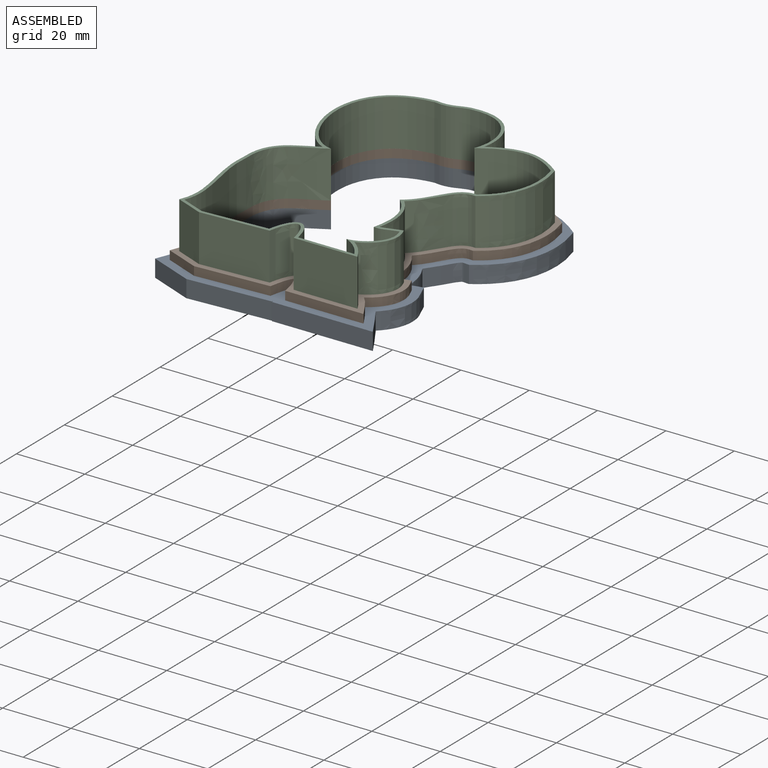
[diagram: assembled view]
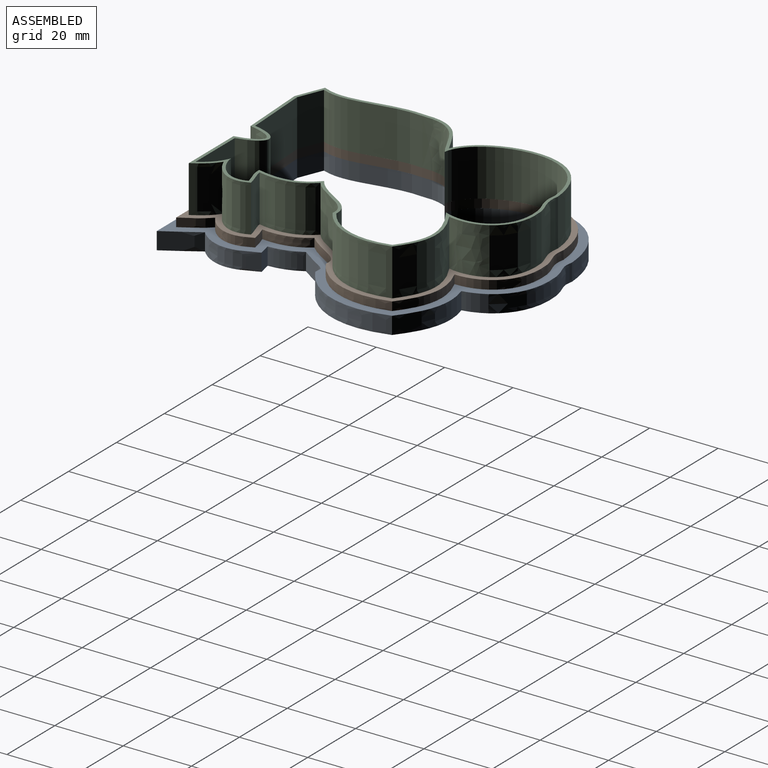
[diagram: assembled view, second angle]
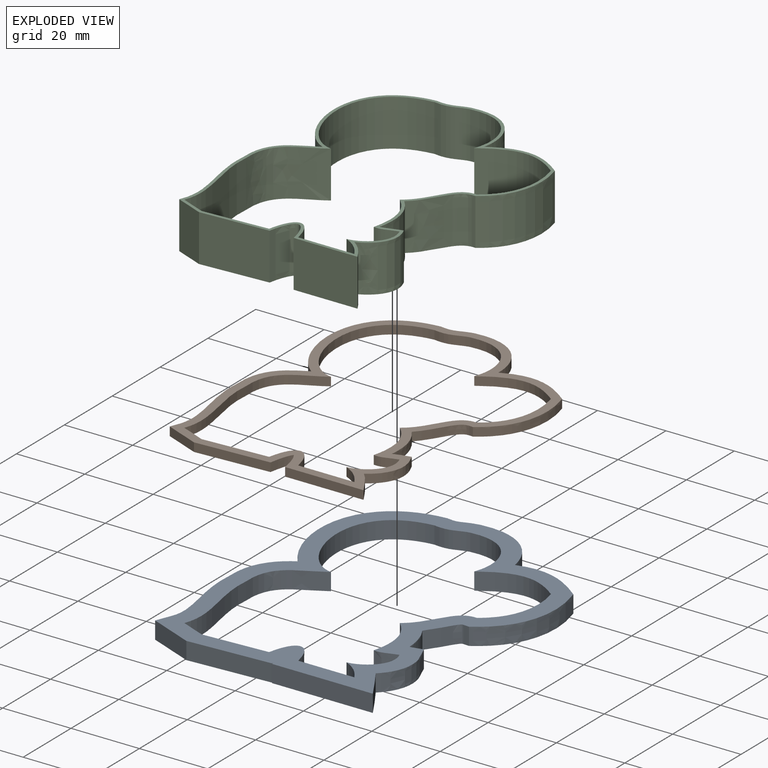
[diagram: exploded view]
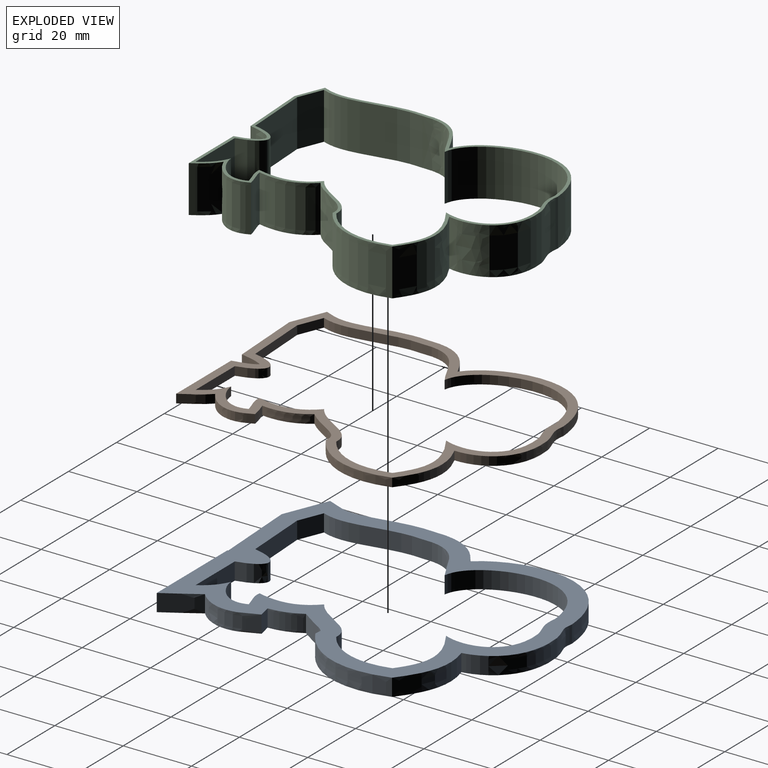
[diagram: exploded view, second angle]
ASSEMBLY  parts=3 mates=2
PART A: 35 faces, bbox 77.6x96.9x7.4 mm
  f0: plane 96.88x77.57mm, normal (0,0,1), area 1623.2mm2, adj f2,f3,f4,f5,f6,f7,f8,f9
  f1: plane 96.88x77.57mm, normal (0,0,-1), area 1623.2mm2, adj f2,f3,f4,f5,f6,f7,f8,f9
  f2: extruded ~5.08x0.43mm, area 2.2mm2, adj f0,f1,f7,f8
  f3: extruded ~40.56x21.79mm, area 277mm2, adj f0,f1,f4,f18
  f4: extruded ~16.34x8.77mm, area 99.8mm2, adj f0,f1,f3,f5
  f5: extruded ~30.75x5.08mm, area 161mm2, adj f0,f1,f4,f6
  f6: plane 12.8x5.22mm, normal (-0.38,-0.93,0), area 70.2mm2, adj f0,f1,f5,f7
  f7: plane 24.05x5.08mm, normal (0.06,-1,0), area 122.3mm2, adj f0,f1,f2,f6
  f8: extruded ~5.08x0.65mm, area 3.4mm2, adj f0,f1,f2,f9
  f9: plane 29.49x5.08mm, normal (0,-1,0), area 149.8mm2, adj f0,f1,f8,f10
  f10: extruded ~9.86x6.07mm, area 58.8mm2, adj f0,f1,f9,f11
  f11: extruded ~17.74x5.08mm, area 100.1mm2, adj f0,f1,f10,f12
  f12: extruded ~5.08x3.68mm, area 19.1mm2, adj f0,f1,f11,f13
  f13: extruded ~9.32x5.08mm, area 49.9mm2, adj f0,f1,f12,f14
  f14: extruded ~8.36x7.86mm, area 60.9mm2, adj f0,f1,f13,f15
  f15: extruded ~29.4x11.46mm, area 170.4mm2, adj f0,f1,f14,f16
  f16: extruded ~21.02x6.53mm, area 115.9mm2, adj f0,f1,f15,f17
  f17: extruded ~19.99x14.08mm, area 137.7mm2, adj f0,f1,f16,f18
  f18: extruded ~8.48x5.08mm, area 44.4mm2, adj f0,f1,f3,f17
  f19: extruded ~35.87x16.51mm, area 254.5mm2, adj f0,f1,f20,f34
  f20: extruded ~16.06x13.66mm, area 116.3mm2, adj f0,f1,f19,f21
  f21: extruded ~27.8x5.08mm, area 143mm2, adj f0,f1,f20,f22
  f22: plane 7.08x5.08mm, normal (0.38,0.93,0), area 38.8mm2, adj f0,f1,f21,f23
  f23: plane 19.02x5.08mm, normal (-0.06,1,0), area 96.8mm2, adj f0,f1,f22,f24
  f24: extruded ~8.52x7.03mm, area 88.6mm2, adj f0,f1,f23,f25
  f25: plane 16.39x5.08mm, normal (0,1,0), area 83.3mm2, adj f0,f1,f24,f26
  f26: extruded ~6.43x5.9mm, area 45.1mm2, adj f0,f1,f25,f27
  f27: extruded ~10.75x8.59mm, area 79.2mm2, adj f0,f1,f26,f28
  f28: extruded ~6.56x5.08mm, area 34.5mm2, adj f0,f1,f27,f29
  f29: extruded ~16.29x5.08mm, area 89.8mm2, adj f0,f1,f28,f30
  f30: extruded ~13.41x12.96mm, area 98.8mm2, adj f0,f1,f29,f31
  f31: extruded ~21.21x7.74mm, area 121.6mm2, adj f0,f1,f30,f32
  f32: extruded ~22.46x5.08mm, area 124.8mm2, adj f0,f1,f31,f33
  f33: extruded ~17.59x14.47mm, area 138.3mm2, adj f0,f1,f32,f34
  f34: extruded ~9.36x5.08mm, area 48.9mm2, adj f0,f1,f19,f33
PART B: 35 faces, bbox 72.2x91.4x4.6 mm
  f0: plane 91.44x72.15mm, normal (0,0,1), area 803mm2, adj f2,f3,f4,f5,f6,f7,f8,f9
  f1: plane 91.44x72.15mm, normal (0,0,-1), area 803mm2, adj f2,f3,f4,f5,f6,f7,f8,f9
  f2: extruded ~6.68x2.54mm, area 17.9mm2, adj f0,f1,f7,f8
  f3: extruded ~38.63x19.14mm, area 131.9mm2, adj f0,f1,f4,f18
  f4: extruded ~15.79x10.54mm, area 52mm2, adj f0,f1,f3,f5
  f5: extruded ~29.28x2.59mm, area 75.4mm2, adj f0,f1,f4,f6
  f6: plane 9.94x4.05mm, normal (-0.38,-0.93,0), area 27.3mm2, adj f0,f1,f5,f7
  f7: plane 21.53x2.54mm, normal (0.06,-1,0), area 54.8mm2, adj f0,f1,f2,f6
  f8: extruded ~6.79x2.54mm, area 18.3mm2, adj f0,f1,f2,f9
  f9: plane 22.94x2.54mm, normal (0,-1,0), area 58.3mm2, adj f0,f1,f8,f10
  f10: extruded ~7.72x5.3mm, area 23.9mm2, adj f0,f1,f9,f11
  f11: extruded ~14.41x5.51mm, area 42.7mm2, adj f0,f1,f10,f12
  f12: extruded ~4.88x2.54mm, area 13mm2, adj f0,f1,f11,f13
  f13: extruded ~12.98x3.43mm, area 35mm2, adj f0,f1,f12,f14
  f14: extruded ~10.69x10.42mm, area 39.7mm2, adj f0,f1,f13,f15
  f15: extruded ~25.31x9.6mm, area 73.2mm2, adj f0,f1,f14,f16
  f16: extruded ~21.09x5.49mm, area 57.9mm2, adj f0,f1,f15,f17
  f17: extruded ~17.35x15.16mm, area 67.2mm2, adj f0,f1,f16,f18
  f18: extruded ~8.92x2.54mm, area 23.2mm2, adj f0,f1,f3,f17
  f19: extruded ~35.87x16.51mm, area 127.2mm2, adj f0,f1,f20,f34
  f20: extruded ~16.06x13.66mm, area 58.1mm2, adj f0,f1,f19,f21
  f21: extruded ~27.8x2.59mm, area 71.5mm2, adj f0,f1,f20,f22
  f22: plane 7.08x2.89mm, normal (0.38,0.93,0), area 19.4mm2, adj f0,f1,f21,f23
  f23: plane 19.02x2.54mm, normal (-0.06,1,0), area 48.4mm2, adj f0,f1,f22,f24
  f24: extruded ~8.52x7.03mm, area 44.3mm2, adj f0,f1,f23,f25
  f25: plane 16.39x2.54mm, normal (0,1,0), area 41.6mm2, adj f0,f1,f24,f26
  f26: extruded ~6.43x5.9mm, area 22.6mm2, adj f0,f1,f25,f27
  f27: extruded ~10.75x8.59mm, area 39.6mm2, adj f0,f1,f26,f28
  f28: extruded ~6.56x2.54mm, area 17.2mm2, adj f0,f1,f27,f29
  f29: extruded ~16.29x4.57mm, area 44.9mm2, adj f0,f1,f28,f30
  f30: extruded ~13.41x12.96mm, area 49.4mm2, adj f0,f1,f29,f31
  f31: extruded ~21.21x7.74mm, area 60.8mm2, adj f0,f1,f30,f32
  f32: extruded ~22.46x4.45mm, area 62.4mm2, adj f0,f1,f31,f33
  f33: extruded ~17.59x14.47mm, area 69.1mm2, adj f0,f1,f32,f34
  f34: extruded ~9.36x2.54mm, area 24.4mm2, adj f0,f1,f19,f33
PART C: 34 faces, bbox 71.6x90.3x17.5 mm
  f0: plane 90.29x71.65mm, normal (0,0,1), area 279.6mm2, adj f2,f3,f4,f5,f6,f7,f8,f9
  f1: plane 90.29x71.65mm, normal (0,0,-1), area 279.6mm2, adj f2,f3,f4,f5,f6,f7,f8,f9
  f2: extruded ~37.08x17.44mm, area 694.2mm2, adj f0,f1,f3,f17
  f3: extruded ~15.73x13.72mm, area 297.8mm2, adj f0,f1,f2,f4
  f4: extruded ~28.32x13.72mm, area 393.9mm2, adj f0,f1,f3,f5
  f5: plane 13.72x8.08mm, normal (-0.38,-0.93,0), area 119.7mm2, adj f0,f1,f4,f6
  f6: plane 19.9x13.72mm, normal (0.06,-1,0), area 273.3mm2, adj f0,f1,f5,f7
  f7: extruded ~13.72x7.07mm, area 225.2mm2, adj f0,f1,f6,f8
  f8: plane 18.69x13.72mm, normal (0,-1,0), area 256.3mm2, adj f0,f1,f7,f9
  f9: extruded ~13.72x6.42mm, area 116.7mm2, adj f0,f1,f8,f10
  f10: extruded ~13.72x12.15mm, area 212.5mm2, adj f0,f1,f9,f11
  f11: extruded ~13.72x5.97mm, area 85.1mm2, adj f0,f1,f10,f12
  f12: extruded ~15.35x13.72mm, area 225.9mm2, adj f0,f1,f11,f13
  f13: extruded ~13.72x12.29mm, area 247.9mm2, adj f0,f1,f12,f14
  f14: extruded ~22.64x13.72mm, area 351.8mm2, adj f0,f1,f13,f15
  f15: extruded ~21.67x13.72mm, area 322.8mm2, adj f0,f1,f14,f16
  f16: extruded ~16.45x15.48mm, area 364.8mm2, adj f0,f1,f15,f17
  f17: extruded ~13.72x9.2mm, area 129.9mm2, adj f0,f1,f2,f16
  f18: extruded ~35.87x16.51mm, area 687.1mm2, adj f0,f1,f19,f33
  f19: extruded ~16.06x13.72mm, area 314mm2, adj f0,f1,f18,f20
  f20: extruded ~27.8x13.72mm, area 386mm2, adj f0,f1,f19,f21
  f21: plane 13.72x7.08mm, normal (0.38,0.93,0), area 104.9mm2, adj f0,f1,f20,f22
  f22: plane 19.02x13.72mm, normal (-0.06,1,0), area 261.2mm2, adj f0,f1,f21,f23
  f23: extruded ~13.72x8.52mm, area 239.1mm2, adj f0,f1,f22,f24
  f24: plane 16.39x13.72mm, normal (0,1,0), area 224.9mm2, adj f0,f1,f23,f25
  f25: extruded ~13.72x6.43mm, area 121.8mm2, adj f0,f1,f24,f26
  f26: extruded ~13.72x10.75mm, area 214mm2, adj f0,f1,f25,f27
  f27: extruded ~13.72x6.56mm, area 93mm2, adj f0,f1,f26,f28
  f28: extruded ~16.29x13.72mm, area 242.4mm2, adj f0,f1,f27,f29
  f29: extruded ~13.72x13.41mm, area 266.7mm2, adj f0,f1,f28,f30
  f30: extruded ~21.21x13.72mm, area 328.2mm2, adj f0,f1,f29,f31
  f31: extruded ~22.46x13.72mm, area 336.9mm2, adj f0,f1,f30,f32
  f32: extruded ~17.59x14.47mm, area 373.3mm2, adj f0,f1,f31,f33
  f33: extruded ~13.72x9.36mm, area 131.9mm2, adj f0,f1,f18,f32
PLACE A at identity
PLACE B t=(182.69,-17.49,5.08)mm
PLACE C t=(74.37,9.83,7.62)mm
MATE fastened B.f1 <-> A.f0  axis (0,0,1) through (48.73,16.17,5.08)mm
MATE fastened C.f1 <-> B.f0  axis (0,0,1) through (48.73,16.17,7.62)mm
